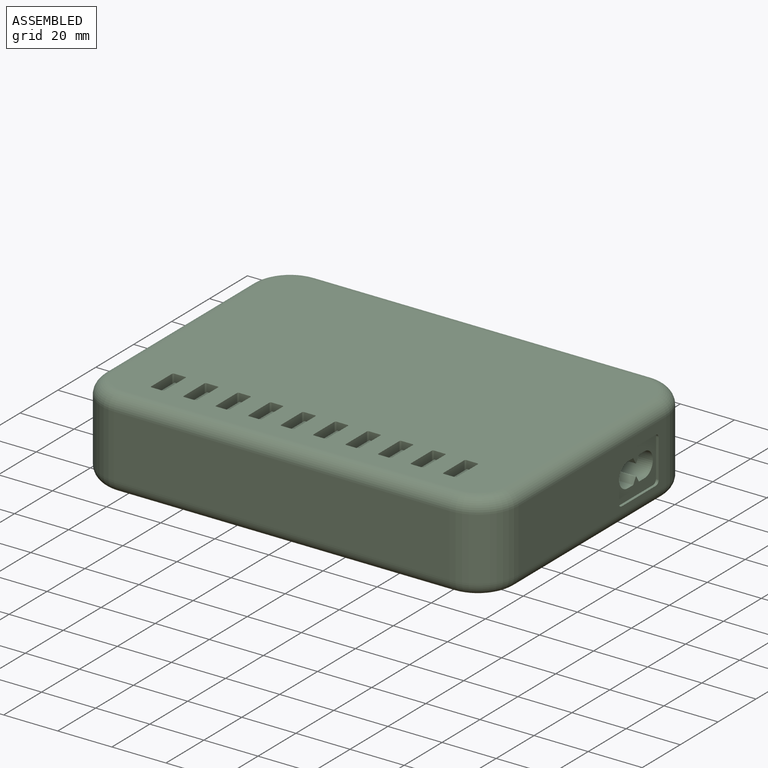
[diagram: assembled view]
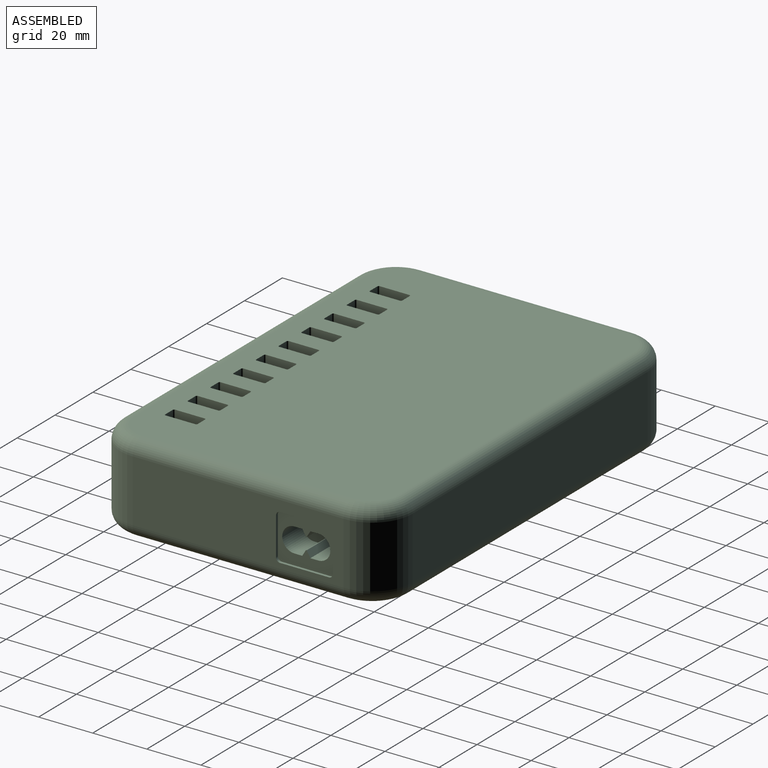
[diagram: assembled view, second angle]
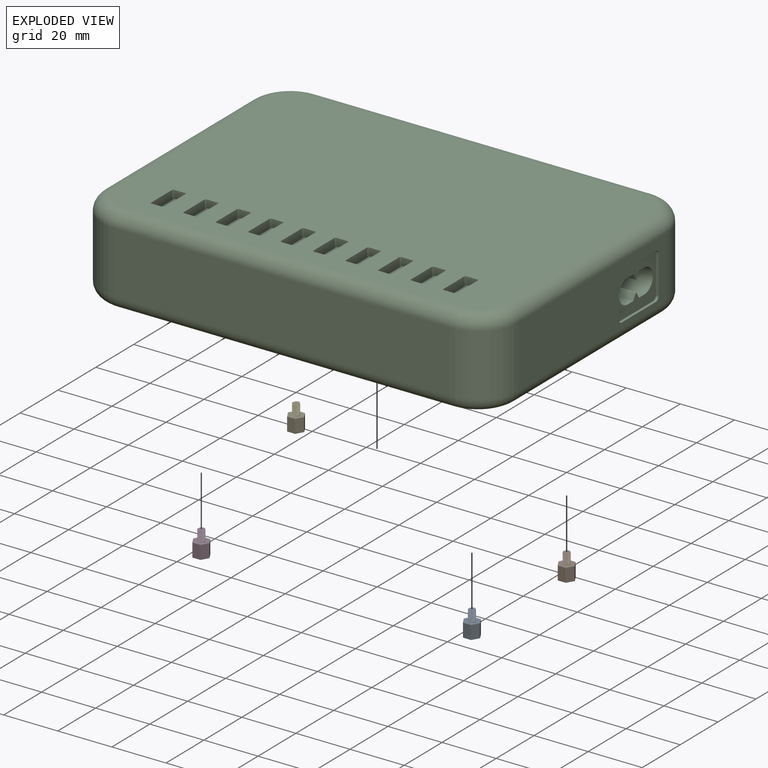
[diagram: exploded view]
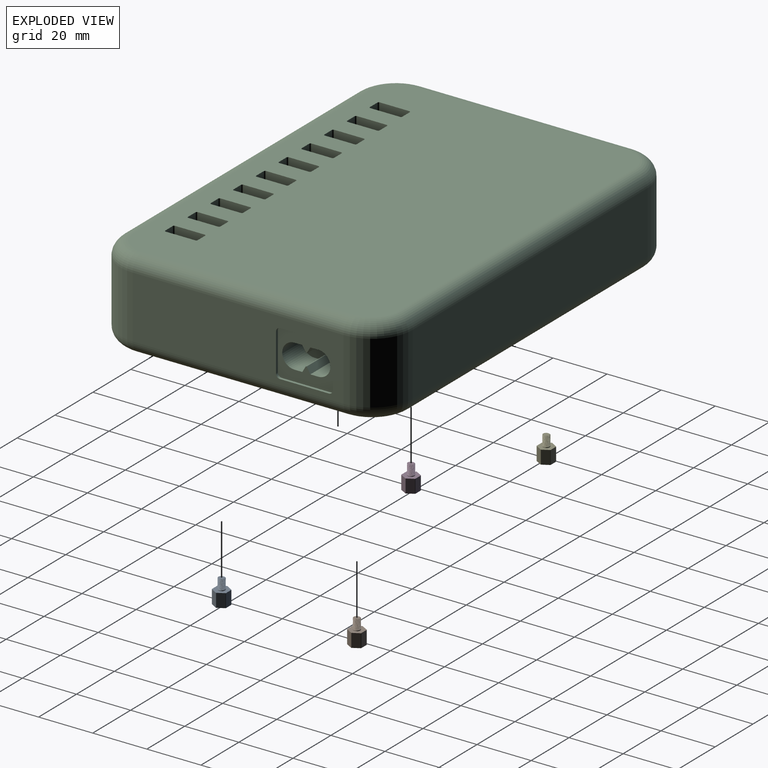
[diagram: exploded view, second angle]
ASSEMBLY  parts=5 mates=4
PART A: 25 faces, bbox 6.2x5.4x9.5 mm
  f0: cylinder r=1.25mm len=3.75mm, axis (0,0,-1), area 3.2mm2, adj f8,f11,f22,f23,f24
  f1: plane 5x2.51mm, normal (0.87,0.5,0), area 14.5mm2, adj f7,f8,f16,f17
  f2: plane 5x2.9mm, normal (0,1,0), area 14.5mm2, adj f7,f8,f12,f17
  f3: plane 5x2.51mm, normal (-0.87,0.5,0), area 14.5mm2, adj f7,f8,f12,f13
  f4: plane 5x2.51mm, normal (-0.87,-0.5,0), area 14.5mm2, adj f7,f8,f13,f14
  f5: plane 5x2.9mm, normal (0,-1,0), area 14.5mm2, adj f7,f8,f14,f15
  f6: plane 5x2.51mm, normal (0.87,-0.5,0), area 14.5mm2, adj f7,f8,f15,f16
  f7: plane 5.95x5.2mm, normal (0,0,1), area 18.5mm2, adj f1,f2,f3,f4,f5,f6,f9,f12
  f8: plane 5.95x5.2mm, normal (0,0,-1), area 18.5mm2, adj f0,f1,f2,f3,f4,f5,f6,f12
  f9: cylinder r=1.25mm len=3.9mm, axis (0,0,-1), area 3.8mm2, adj f7,f18,f19,f20,f21
  f10: plane 2.33x2.23mm, normal (0,0,1), area 3.7mm2, adj f18,f20,f21
  f11: plane 2.47x2.46mm, normal (0,0,-1), area 3.9mm2, adj f0,f23,f24
  f12: plane 5x0.08mm, normal (-0.5,0.87,0), area 0.4mm2, adj f2,f3,f7,f8
  f13: plane 5x0.09mm, normal (-1,0,0), area 0.4mm2, adj f3,f4,f7,f8
  f14: plane 5x0.08mm, normal (-0.5,-0.87,0), area 0.4mm2, adj f4,f5,f7,f8
  f15: plane 5x0.08mm, normal (0.5,-0.87,0), area 0.4mm2, adj f5,f6,f7,f8
  f16: plane 5x0.09mm, normal (1,0,0), area 0.4mm2, adj f1,f6,f7,f8
  f17: plane 5x0.08mm, normal (0.5,0.87,0), area 0.4mm2, adj f1,f2,f7,f8
  f18: cone r=1.15mm half-angle=45deg, axis (0,0,-1), area 0.2mm2, adj f9,f10,f20,f21
  f19: plane 0.34x0.27mm, normal (0.43,-0.9,0), area 0.1mm2, adj f9,f20,f21
  f20: bspline ~4.08x2.89mm, area 25.1mm2, adj f9,f10,f18,f19,f21
  f21: bspline ~4.2x2.89mm, area 26.3mm2, adj f7,f9,f10,f18,f19,f20
  f22: plane 0.34x0.29mm, normal (0.97,0.22,0), area 0.1mm2, adj f0,f23,f24
  f23: bspline ~3.85x2.89mm, area 23.5mm2, adj f0,f11,f22,f24
  f24: bspline ~3.96x2.89mm, area 24.8mm2, adj f0,f11,f22,f23
PART B: same geometry as A
PART C: 246 faces, bbox 156.5x110.5x33 mm
  f0: plane 12x5mm, normal (0,0,1), area 44mm2, adj f72,f73,f74,f75,f76,f77,f78,f79
  f1: plane 144x98mm, normal (0,0,1), area 13428.3mm2, adj f19,f20,f21,f22,f23,f24,f25,f26
  f2: plane 78x23mm, normal (1,0,0), area 1438.9mm2, adj f3,f9,f15,f23,f216,f217,f218,f219
  f3: cylinder r=15mm len=23mm, axis (0,0,-1), area 541.9mm2, adj f2,f4,f13,f21
  f4: plane 124x23mm, normal (0,1,0), area 2852mm2, adj f3,f5,f11,f19
  f5: cylinder r=15mm len=23mm, axis (0,0,-1), area 541.9mm2, adj f4,f6,f12,f20
  f6: plane 78x23mm, normal (-1,0,0), area 1794mm2, adj f5,f7,f14,f22
  f7: cylinder r=15mm len=23mm, axis (0,0,-1), area 541.9mm2, adj f6,f8,f16,f24
  f8: plane 124x23mm, normal (0,-1,0), area 2852mm2, adj f7,f9,f18,f26
  f9: cylinder r=15mm len=23mm, axis (0,0,-1), area 541.9mm2, adj f2,f8,f17,f25
  f10: plane 144x98mm, normal (0,0,-1), area 13856.5mm2, adj f11,f12,f13,f14,f15,f16,f17,f18
  f11: cylinder r=5mm len=124mm, axis (-1,0,0), area 973.9mm2, adj f4,f10,f12,f13
  f12: torus R=10mm, axis (0,0,1), area 162.6mm2, adj f5,f10,f11,f14
  f13: torus R=10mm, axis (0,0,1), area 162.6mm2, adj f3,f10,f11,f15
  f14: cylinder r=5mm len=78mm, axis (0,-1,0), area 612.6mm2, adj f6,f10,f12,f16
  f15: cylinder r=5mm len=78mm, axis (0,1,0), area 612.6mm2, adj f2,f10,f13,f17
  f16: torus R=10mm, axis (0,0,1), area 162.6mm2, adj f7,f10,f14,f18
  f17: torus R=10mm, axis (0,0,1), area 162.6mm2, adj f9,f10,f15,f18
  f18: cylinder r=5mm len=124mm, axis (1,0,0), area 973.9mm2, adj f8,f10,f16,f17
  f19: cylinder r=5mm len=124mm, axis (1,0,0), area 973.9mm2, adj f1,f4,f20,f21
  f20: torus R=10mm, axis (0,0,1), area 162.6mm2, adj f1,f5,f19,f22
  f21: torus R=10mm, axis (0,0,1), area 162.6mm2, adj f1,f3,f19,f23
  f22: cylinder r=5mm len=78mm, axis (0,1,0), area 612.6mm2, adj f1,f6,f20,f24
  f23: cylinder r=5mm len=78mm, axis (0,-1,0), area 612.6mm2, adj f1,f2,f21,f25
  f24: torus R=10mm, axis (0,0,1), area 162.6mm2, adj f1,f7,f22,f26
  f25: torus R=10mm, axis (0,0,1), area 162.6mm2, adj f1,f9,f23,f26
  f26: cylinder r=5mm len=124mm, axis (-1,0,0), area 973.9mm2, adj f1,f8,f24,f25
  f27: plane 11x4mm, normal (0,-1,0), area 44mm2, adj f1,f31,f126,f129
  f28: plane 11x11mm, normal (1,0,0), area 121mm2, adj f1,f31,f128,f129
  f29: plane 11x4mm, normal (0,1,0), area 44mm2, adj f1,f31,f127,f128
  f30: plane 11x11mm, normal (-1,0,0), area 121mm2, adj f1,f31,f126,f127
  f31: plane 12x5mm, normal (0,0,1), area 44mm2, adj f27,f28,f29,f30,f121,f122,f123,f124
  f32: plane 11x4mm, normal (0,-1,0), area 44mm2, adj f1,f36,f130,f133
  f33: plane 11x11mm, normal (1,0,0), area 121mm2, adj f1,f36,f132,f133
  f34: plane 11x4mm, normal (0,1,0), area 44mm2, adj f1,f36,f131,f132
  f35: plane 11x11mm, normal (-1,0,0), area 121mm2, adj f1,f36,f130,f131
  f36: plane 12x5mm, normal (0,0,1), area 44mm2, adj f32,f33,f34,f35,f116,f117,f118,f119
  f37: plane 11x4mm, normal (0,-1,0), area 44mm2, adj f1,f41,f134,f137
  f38: plane 11x11mm, normal (1,0,0), area 121mm2, adj f1,f41,f136,f137
  f39: plane 11x4mm, normal (0,1,0), area 44mm2, adj f1,f41,f135,f136
  f40: plane 11x11mm, normal (-1,0,0), area 121mm2, adj f1,f41,f134,f135
  f41: plane 12x5mm, normal (0,0,1), area 44mm2, adj f37,f38,f39,f40,f111,f112,f113,f114
  f42: plane 11x4mm, normal (0,-1,0), area 44mm2, adj f1,f46,f138,f141
  f43: plane 11x11mm, normal (1,0,0), area 121mm2, adj f1,f46,f140,f141
  f44: plane 11x4mm, normal (0,1,0), area 44mm2, adj f1,f46,f139,f140
  f45: plane 11x11mm, normal (-1,0,0), area 121mm2, adj f1,f46,f138,f139
  f46: plane 12x5mm, normal (0,0,1), area 44mm2, adj f42,f43,f44,f45,f106,f107,f108,f109
  f47: plane 11x4mm, normal (0,-1,0), area 44mm2, adj f1,f51,f142,f145
  f48: plane 11x11mm, normal (1,0,0), area 121mm2, adj f1,f51,f144,f145
  f49: plane 11x4mm, normal (0,1,0), area 44mm2, adj f1,f51,f143,f144
  f50: plane 11x11mm, normal (-1,0,0), area 121mm2, adj f1,f51,f142,f143
  f51: plane 12x5mm, normal (0,0,1), area 44mm2, adj f47,f48,f49,f50,f101,f102,f103,f104
  f52: plane 11x4mm, normal (0,-1,0), area 44mm2, adj f1,f56,f146,f149
  f53: plane 11x11mm, normal (1,0,0), area 121mm2, adj f1,f56,f148,f149
  f54: plane 11x4mm, normal (0,1,0), area 44mm2, adj f1,f56,f147,f148
  f55: plane 11x11mm, normal (-1,0,0), area 121mm2, adj f1,f56,f146,f147
  f56: plane 12x5mm, normal (0,0,1), area 44mm2, adj f52,f53,f54,f55,f96,f97,f98,f99
  f57: plane 11x4mm, normal (0,-1,0), area 44mm2, adj f1,f61,f150,f153
  f58: plane 11x11mm, normal (1,0,0), area 121mm2, adj f1,f61,f152,f153
  f59: plane 11x4mm, normal (0,1,0), area 44mm2, adj f1,f61,f151,f152
  f60: plane 11x11mm, normal (-1,0,0), area 121mm2, adj f1,f61,f150,f151
  f61: plane 12x5mm, normal (0,0,1), area 44mm2, adj f57,f58,f59,f60,f91,f92,f93,f94
  f62: plane 11x4mm, normal (0,-1,0), area 44mm2, adj f1,f66,f154,f157
  f63: plane 11x11mm, normal (1,0,0), area 121mm2, adj f1,f66,f156,f157
  f64: plane 11x4mm, normal (0,1,0), area 44mm2, adj f1,f66,f155,f156
  f65: plane 11x11mm, normal (-1,0,0), area 121mm2, adj f1,f66,f154,f155
  f66: plane 12x5mm, normal (0,0,1), area 44mm2, adj f62,f63,f64,f65,f86,f87,f88,f89
  f67: plane 11x4mm, normal (0,-1,0), area 44mm2, adj f1,f71,f158,f161
  f68: plane 11x11mm, normal (1,0,0), area 121mm2, adj f1,f71,f158,f159
  f69: plane 11x4mm, normal (0,1,0), area 44mm2, adj f1,f71,f159,f160
  f70: plane 11x11mm, normal (-1,0,0), area 121mm2, adj f1,f71,f160,f161
  f71: plane 12x5mm, normal (0,0,1), area 44mm2, adj f67,f68,f69,f70,f81,f82,f83,f84
  f72: plane 11x11mm, normal (1,0,0), area 121mm2, adj f0,f1,f162,f165
  f73: plane 11x4mm, normal (0,1,0), area 44mm2, adj f0,f1,f164,f165
  f74: plane 11x11mm, normal (-1,0,0), area 121mm2, adj f0,f1,f163,f164
  f75: plane 11x4mm, normal (0,-1,0), area 44mm2, adj f0,f1,f162,f163
  f76: plane 10.5x8.3mm, normal (-1,0,0), area 87.2mm2, adj f0,f77,f79,f166
  f77: plane 8.3x1.5mm, normal (0,-1,0), area 12.5mm2, adj f0,f76,f78,f168
  f78: plane 10.5x8.3mm, normal (1,0,0), area 87.2mm2, adj f0,f77,f79,f169
  f79: plane 8.3x1.5mm, normal (0,1,0), area 12.5mm2, adj f0,f76,f78,f167
  f80: plane 9.7x0.7mm, normal (0,0,1), area 6.8mm2, adj f166,f167,f168,f169
  f81: plane 8.3x1.5mm, normal (0,1,0), area 12.5mm2, adj f71,f82,f84,f170
  f82: plane 10.5x8.3mm, normal (-1,0,0), area 87.2mm2, adj f71,f81,f83,f171
  f83: plane 8.3x1.5mm, normal (0,-1,0), area 12.5mm2, adj f71,f82,f84,f173
  f84: plane 10.5x8.3mm, normal (1,0,0), area 87.2mm2, adj f71,f81,f83,f172
  f85: plane 9.7x0.7mm, normal (0,0,1), area 6.8mm2, adj f170,f171,f172,f173
  f86: plane 8.3x1.5mm, normal (0,1,0), area 12.4mm2, adj f66,f87,f89,f174
  f87: plane 10.5x8.3mm, normal (-1,0,0), area 87.2mm2, adj f66,f86,f88,f175
  f88: plane 8.3x1.5mm, normal (0,-1,0), area 12.4mm2, adj f66,f87,f89,f177
  f89: plane 10.5x8.3mm, normal (1,0,0), area 87.2mm2, adj f66,f86,f88,f176
  f90: plane 9.7x0.7mm, normal (0,0,1), area 6.8mm2, adj f174,f175,f176,f177
  f91: plane 8.3x1.5mm, normal (0,1,0), area 12.5mm2, adj f61,f92,f94,f178
  f92: plane 10.5x8.3mm, normal (-1,0,0), area 87.2mm2, adj f61,f91,f93,f179
  f93: plane 8.3x1.5mm, normal (0,-1,0), area 12.5mm2, adj f61,f92,f94,f181
  f94: plane 10.5x8.3mm, normal (1,0,0), area 87.2mm2, adj f61,f91,f93,f180
  f95: plane 9.7x0.7mm, normal (0,0,1), area 6.8mm2, adj f178,f179,f180,f181
  f96: plane 8.3x1.5mm, normal (0,1,0), area 12.4mm2, adj f56,f97,f99,f182
  f97: plane 10.5x8.3mm, normal (-1,0,0), area 87.2mm2, adj f56,f96,f98,f183
  f98: plane 8.3x1.5mm, normal (0,-1,0), area 12.4mm2, adj f56,f97,f99,f185
  f99: plane 10.5x8.3mm, normal (1,0,0), area 87.2mm2, adj f56,f96,f98,f184
  f100: plane 9.7x0.7mm, normal (0,0,1), area 6.8mm2, adj f182,f183,f184,f185
  f101: plane 8.3x1.5mm, normal (0,1,0), area 12.5mm2, adj f51,f102,f104,f186
  f102: plane 10.5x8.3mm, normal (-1,0,0), area 87.2mm2, adj f51,f101,f103,f187
  f103: plane 8.3x1.5mm, normal (0,-1,0), area 12.5mm2, adj f51,f102,f104,f189
  f104: plane 10.5x8.3mm, normal (1,0,0), area 87.2mm2, adj f51,f101,f103,f188
  f105: plane 9.7x0.7mm, normal (0,0,1), area 6.8mm2, adj f186,f187,f188,f189
  f106: plane 8.3x1.5mm, normal (0,1,0), area 12.5mm2, adj f46,f107,f109,f190
  f107: plane 10.5x8.3mm, normal (-1,0,0), area 87.2mm2, adj f46,f106,f108,f191
  f108: plane 8.3x1.5mm, normal (0,-1,0), area 12.5mm2, adj f46,f107,f109,f193
  f109: plane 10.5x8.3mm, normal (1,0,0), area 87.2mm2, adj f46,f106,f108,f192
  f110: plane 9.7x0.7mm, normal (0,0,1), area 6.8mm2, adj f190,f191,f192,f193
  f111: plane 8.3x1.5mm, normal (0,1,0), area 12.5mm2, adj f41,f112,f114,f194
  f112: plane 10.5x8.3mm, normal (-1,0,0), area 87.2mm2, adj f41,f111,f113,f195
  f113: plane 8.3x1.5mm, normal (0,-1,0), area 12.5mm2, adj f41,f112,f114,f197
  f114: plane 10.5x8.3mm, normal (1,0,0), area 87.2mm2, adj f41,f111,f113,f196
  f115: plane 9.7x0.7mm, normal (0,0,1), area 6.8mm2, adj f194,f195,f196,f197
  f116: plane 8.3x1.5mm, normal (0,1,0), area 12.4mm2, adj f36,f117,f119,f198
  f117: plane 10.5x8.3mm, normal (-1,0,0), area 87.2mm2, adj f36,f116,f118,f199
  f118: plane 8.3x1.5mm, normal (0,-1,0), area 12.4mm2, adj f36,f117,f119,f201
  f119: plane 10.5x8.3mm, normal (1,0,0), area 87.2mm2, adj f36,f116,f118,f200
  f120: plane 9.7x0.7mm, normal (0,0,1), area 6.8mm2, adj f198,f199,f200,f201
  f121: plane 8.3x1.5mm, normal (0,1,0), area 12.5mm2, adj f31,f122,f124,f202
  f122: plane 10.5x8.3mm, normal (-1,0,0), area 87.2mm2, adj f31,f121,f123,f203
  f123: plane 8.3x1.5mm, normal (0,-1,0), area 12.5mm2, adj f31,f122,f124,f205
  f124: plane 10.5x8.3mm, normal (1,0,0), area 87.2mm2, adj f31,f121,f123,f204
  f125: plane 9.7x0.7mm, normal (0,0,1), area 6.8mm2, adj f202,f203,f204,f205
  f126: cylinder r=0.5mm len=11mm, axis (0,0,-1), area 8.6mm2, adj f1,f27,f30,f31
  f127: cylinder r=0.5mm len=11mm, axis (0,0,1), area 8.6mm2, adj f1,f29,f30,f31
  f128: cylinder r=0.5mm len=11mm, axis (0,0,-1), area 8.6mm2, adj f1,f28,f29,f31
  f129: cylinder r=0.5mm len=11mm, axis (0,0,1), area 8.6mm2, adj f1,f27,f28,f31
  f130: cylinder r=0.5mm len=11mm, axis (0,0,-1), area 8.6mm2, adj f1,f32,f35,f36
  f131: cylinder r=0.5mm len=11mm, axis (0,0,1), area 8.6mm2, adj f1,f34,f35,f36
  f132: cylinder r=0.5mm len=11mm, axis (0,0,-1), area 8.6mm2, adj f1,f33,f34,f36
  f133: cylinder r=0.5mm len=11mm, axis (0,0,1), area 8.6mm2, adj f1,f32,f33,f36
  f134: cylinder r=0.5mm len=11mm, axis (0,0,-1), area 8.6mm2, adj f1,f37,f40,f41
  f135: cylinder r=0.5mm len=11mm, axis (0,0,1), area 8.6mm2, adj f1,f39,f40,f41
  f136: cylinder r=0.5mm len=11mm, axis (0,0,-1), area 8.6mm2, adj f1,f38,f39,f41
  f137: cylinder r=0.5mm len=11mm, axis (0,0,1), area 8.6mm2, adj f1,f37,f38,f41
  f138: cylinder r=0.5mm len=11mm, axis (0,0,-1), area 8.6mm2, adj f1,f42,f45,f46
  f139: cylinder r=0.5mm len=11mm, axis (0,0,1), area 8.6mm2, adj f1,f44,f45,f46
  f140: cylinder r=0.5mm len=11mm, axis (0,0,-1), area 8.6mm2, adj f1,f43,f44,f46
  f141: cylinder r=0.5mm len=11mm, axis (0,0,1), area 8.6mm2, adj f1,f42,f43,f46
  f142: cylinder r=0.5mm len=11mm, axis (0,0,-1), area 8.6mm2, adj f1,f47,f50,f51
  f143: cylinder r=0.5mm len=11mm, axis (0,0,1), area 8.6mm2, adj f1,f49,f50,f51
  f144: cylinder r=0.5mm len=11mm, axis (0,0,-1), area 8.6mm2, adj f1,f48,f49,f51
  f145: cylinder r=0.5mm len=11mm, axis (0,0,1), area 8.6mm2, adj f1,f47,f48,f51
  f146: cylinder r=0.5mm len=11mm, axis (0,0,-1), area 8.6mm2, adj f1,f52,f55,f56
  f147: cylinder r=0.5mm len=11mm, axis (0,0,1), area 8.6mm2, adj f1,f54,f55,f56
  f148: cylinder r=0.5mm len=11mm, axis (0,0,-1), area 8.6mm2, adj f1,f53,f54,f56
  f149: cylinder r=0.5mm len=11mm, axis (0,0,1), area 8.6mm2, adj f1,f52,f53,f56
  f150: cylinder r=0.5mm len=11mm, axis (0,0,-1), area 8.6mm2, adj f1,f57,f60,f61
  f151: cylinder r=0.5mm len=11mm, axis (0,0,1), area 8.6mm2, adj f1,f59,f60,f61
  f152: cylinder r=0.5mm len=11mm, axis (0,0,-1), area 8.6mm2, adj f1,f58,f59,f61
  f153: cylinder r=0.5mm len=11mm, axis (0,0,1), area 8.6mm2, adj f1,f57,f58,f61
  f154: cylinder r=0.5mm len=11mm, axis (0,0,-1), area 8.6mm2, adj f1,f62,f65,f66
  f155: cylinder r=0.5mm len=11mm, axis (0,0,1), area 8.6mm2, adj f1,f64,f65,f66
  f156: cylinder r=0.5mm len=11mm, axis (0,0,-1), area 8.6mm2, adj f1,f63,f64,f66
  f157: cylinder r=0.5mm len=11mm, axis (0,0,1), area 8.6mm2, adj f1,f62,f63,f66
  f158: cylinder r=0.5mm len=11mm, axis (0,0,1), area 8.6mm2, adj f1,f67,f68,f71
  f159: cylinder r=0.5mm len=11mm, axis (0,0,-1), area 8.6mm2, adj f1,f68,f69,f71
  f160: cylinder r=0.5mm len=11mm, axis (0,0,1), area 8.6mm2, adj f1,f69,f70,f71
  f161: cylinder r=0.5mm len=11mm, axis (0,0,-1), area 8.6mm2, adj f1,f67,f70,f71
  f162: cylinder r=0.5mm len=11mm, axis (0,0,1), area 8.6mm2, adj f0,f1,f72,f75
  f163: cylinder r=0.5mm len=11mm, axis (0,0,-1), area 8.6mm2, adj f0,f1,f74,f75
  f164: cylinder r=0.5mm len=11mm, axis (0,0,1), area 8.6mm2, adj f0,f1,f73,f74
  f165: cylinder r=0.5mm len=11mm, axis (0,0,-1), area 8.6mm2, adj f0,f1,f72,f73
  f166: plane 10.5x0.4mm, normal (-0.71,0,0.71), area 5.7mm2, adj f76,f80,f167,f168
  f167: plane 1.5x0.4mm, normal (0,0.71,0.71), area 0.6mm2, adj f79,f80,f166,f169
  f168: plane 1.5x0.4mm, normal (0,-0.71,0.71), area 0.6mm2, adj f77,f80,f166,f169
  f169: plane 10.5x0.4mm, normal (0.71,0,0.71), area 5.7mm2, adj f78,f80,f167,f168
  f170: plane 1.5x0.4mm, normal (0,0.71,0.71), area 0.6mm2, adj f81,f85,f171,f172
  f171: plane 10.5x0.4mm, normal (-0.71,0,0.71), area 5.7mm2, adj f82,f85,f170,f173
  f172: plane 10.5x0.4mm, normal (0.71,0,0.71), area 5.7mm2, adj f84,f85,f170,f173
  f173: plane 1.5x0.4mm, normal (0,-0.71,0.71), area 0.6mm2, adj f83,f85,f171,f172
  f174: plane 1.5x0.4mm, normal (0,0.71,0.71), area 0.6mm2, adj f86,f90,f175,f176
  f175: plane 10.5x0.4mm, normal (-0.71,0,0.71), area 5.7mm2, adj f87,f90,f174,f177
  f176: plane 10.5x0.4mm, normal (0.71,0,0.71), area 5.7mm2, adj f89,f90,f174,f177
  f177: plane 1.5x0.4mm, normal (0,-0.71,0.71), area 0.6mm2, adj f88,f90,f175,f176
  f178: plane 1.5x0.4mm, normal (0,0.71,0.71), area 0.6mm2, adj f91,f95,f179,f180
  f179: plane 10.5x0.4mm, normal (-0.71,0,0.71), area 5.7mm2, adj f92,f95,f178,f181
  f180: plane 10.5x0.4mm, normal (0.71,0,0.71), area 5.7mm2, adj f94,f95,f178,f181
  f181: plane 1.5x0.4mm, normal (0,-0.71,0.71), area 0.6mm2, adj f93,f95,f179,f180
  f182: plane 1.5x0.4mm, normal (0,0.71,0.71), area 0.6mm2, adj f96,f100,f183,f184
  f183: plane 10.5x0.4mm, normal (-0.71,0,0.71), area 5.7mm2, adj f97,f100,f182,f185
  f184: plane 10.5x0.4mm, normal (0.71,0,0.71), area 5.7mm2, adj f99,f100,f182,f185
  f185: plane 1.5x0.4mm, normal (0,-0.71,0.71), area 0.6mm2, adj f98,f100,f183,f184
  f186: plane 1.5x0.4mm, normal (0,0.71,0.71), area 0.6mm2, adj f101,f105,f187,f188
  f187: plane 10.5x0.4mm, normal (-0.71,0,0.71), area 5.7mm2, adj f102,f105,f186,f189
  f188: plane 10.5x0.4mm, normal (0.71,0,0.71), area 5.7mm2, adj f104,f105,f186,f189
  f189: plane 1.5x0.4mm, normal (0,-0.71,0.71), area 0.6mm2, adj f103,f105,f187,f188
  f190: plane 1.5x0.4mm, normal (0,0.71,0.71), area 0.6mm2, adj f106,f110,f191,f192
  f191: plane 10.5x0.4mm, normal (-0.71,0,0.71), area 5.7mm2, adj f107,f110,f190,f193
  f192: plane 10.5x0.4mm, normal (0.71,0,0.71), area 5.7mm2, adj f109,f110,f190,f193
  f193: plane 1.5x0.4mm, normal (0,-0.71,0.71), area 0.6mm2, adj f108,f110,f191,f192
  f194: plane 1.5x0.4mm, normal (0,0.71,0.71), area 0.6mm2, adj f111,f115,f195,f196
  f195: plane 10.5x0.4mm, normal (-0.71,0,0.71), area 5.7mm2, adj f112,f115,f194,f197
  f196: plane 10.5x0.4mm, normal (0.71,0,0.71), area 5.7mm2, adj f114,f115,f194,f197
  f197: plane 1.5x0.4mm, normal (0,-0.71,0.71), area 0.6mm2, adj f113,f115,f195,f196
  f198: plane 1.5x0.4mm, normal (0,0.71,0.71), area 0.6mm2, adj f116,f120,f199,f200
  f199: plane 10.5x0.4mm, normal (-0.71,0,0.71), area 5.7mm2, adj f117,f120,f198,f201
  f200: plane 10.5x0.4mm, normal (0.71,0,0.71), area 5.7mm2, adj f119,f120,f198,f201
  f201: plane 1.5x0.4mm, normal (0,-0.71,0.71), area 0.6mm2, adj f118,f120,f199,f200
  f202: plane 1.5x0.4mm, normal (0,0.71,0.71), area 0.6mm2, adj f121,f125,f203,f204
  f203: plane 10.5x0.4mm, normal (-0.71,0,0.71), area 5.7mm2, adj f122,f125,f202,f205
  f204: plane 10.5x0.4mm, normal (0.71,0,0.71), area 5.7mm2, adj f124,f125,f202,f205
  f205: plane 1.5x0.4mm, normal (0,-0.71,0.71), area 0.6mm2, adj f123,f125,f203,f204
  f206: cylinder r=3mm len=15mm, axis (0,0,-1), area 282.7mm2, adj f10,f207
  f207: plane 6x6mm, normal (0,0,-1), area 28.3mm2, adj f206
  f208: cylinder r=3mm len=15mm, axis (0,0,-1), area 282.7mm2, adj f10,f209
  f209: plane 6x6mm, normal (0,0,-1), area 28.3mm2, adj f208
  f210: cylinder r=3mm len=15mm, axis (0,0,-1), area 282.7mm2, adj f10,f211
  f211: plane 6x6mm, normal (0,0,-1), area 28.3mm2, adj f210
  f212: cylinder r=3mm len=15mm, axis (0,0,-1), area 282.7mm2, adj f10,f213
  f213: plane 6x6mm, normal (0,0,-1), area 28.3mm2, adj f212
  f214: cylinder r=3mm len=15mm, axis (0,0,-1), area 282.7mm2, adj f10,f215
  f215: plane 6x6mm, normal (0,0,-1), area 28.3mm2, adj f214
  f216: cylinder r=1.5mm len=1.5mm, axis (1,0,0), area 2.4mm2, adj f2,f217,f223,f224
  f217: plane 18x1mm, normal (0,0,1), area 18mm2, adj f2,f216,f218,f224
  f218: cylinder r=1.5mm len=1.5mm, axis (1,0,0), area 2.4mm2, adj f2,f217,f219,f224
  f219: plane 14x1mm, normal (0,-1,0), area 14mm2, adj f2,f218,f220,f224
  f220: cylinder r=1.5mm len=1.5mm, axis (1,0,0), area 2.4mm2, adj f2,f219,f221,f224
  f221: plane 18x1mm, normal (0,0,-1), area 18mm2, adj f2,f220,f222,f224
  f222: cylinder r=1.5mm len=1.5mm, axis (1,0,0), area 2.4mm2, adj f2,f221,f223,f224
  f223: plane 14x1mm, normal (0,1,0), area 14mm2, adj f2,f216,f222,f224
  f224: plane 21x17mm, normal (1,0,0), area 219.9mm2, adj f216,f217,f218,f219,f220,f221,f222,f223
  f225: plane 10.5x2.89mm, normal (0,0,1), area 30.3mm2, adj f224,f226,f236,f237
  f226: cylinder r=4.5mm len=10.5mm, axis (1,0,0), area 148.4mm2, adj f224,f225,f227,f237
  f227: plane 10.5x2.89mm, normal (0,0,-1), area 30.3mm2, adj f224,f226,f228,f237
  f228: plane 10.5x2.21mm, normal (0,0.86,-0.51), area 27.1mm2, adj f224,f227,f229,f237
  f229: cylinder r=0.2mm len=10.5mm, axis (1,0,0), area 4.3mm2, adj f224,f228,f230,f237
  f230: plane 10.5x2.21mm, normal (0,-0.86,-0.51), area 27.1mm2, adj f224,f229,f231,f237
  f231: plane 10.5x2.89mm, normal (0,0,-1), area 30.3mm2, adj f224,f230,f232,f237
  f232: cylinder r=4.5mm len=10.5mm, axis (1,0,0), area 148.4mm2, adj f224,f231,f233,f237
  f233: plane 10.5x2.89mm, normal (0,0,1), area 30.3mm2, adj f224,f232,f234,f237
  f234: plane 10.5x2.21mm, normal (0,-0.86,0.51), area 27.1mm2, adj f224,f233,f235,f237
  f235: cylinder r=0.2mm len=10.5mm, axis (1,0,0), area 4.3mm2, adj f224,f234,f236,f237
  f236: plane 10.5x2.21mm, normal (0,0.86,0.51), area 27.1mm2, adj f224,f225,f235,f237
  f237: plane 17.78x9mm, normal (1,0,0), area 135.2mm2, adj f225,f226,f227,f228,f229,f230,f231,f232
  f238: cylinder r=1.5mm len=5mm, axis (0,0,-1), area 47.1mm2, adj f10,f239
  f239: plane 3x3mm, normal (0,0,-1), area 7.1mm2, adj f238
  f240: cylinder r=1.5mm len=5mm, axis (0,0,-1), area 47.1mm2, adj f10,f241
  f241: plane 3x3mm, normal (0,0,-1), area 7.1mm2, adj f240
  f242: cylinder r=1.5mm len=5mm, axis (0,0,-1), area 47.1mm2, adj f10,f243
  f243: plane 3x3mm, normal (0,0,-1), area 7.1mm2, adj f242
  f244: cylinder r=1.5mm len=5mm, axis (0,0,-1), area 47.1mm2, adj f10,f245
  f245: plane 3x3mm, normal (0,0,-1), area 7.1mm2, adj f244
PART D: same geometry as A
PART E: same geometry as A
PLACE A t=(27.18,-37.35,-20.26)mm
PLACE B t=(27.18,12.65,-20.26)mm
PLACE C t=(-22.82,-12.35,1.24)mm
PLACE D t=(-72.82,-37.35,-20.26)mm
PLACE E t=(-72.82,12.65,-20.26)mm
MATE fastened A.f0 <-> C.f240  axis (0,0,1) through (27.18,-37.35,-15.26)mm
MATE fastened E.f0 <-> C.f238  axis (0,0,1) through (-72.82,12.65,-15.26)mm
MATE fastened B.f0 <-> C.f244  axis (0,0,1) through (27.18,12.65,-15.26)mm
MATE fastened D.f0 <-> C.f242  axis (0,0,1) through (-72.82,-37.35,-15.26)mm
